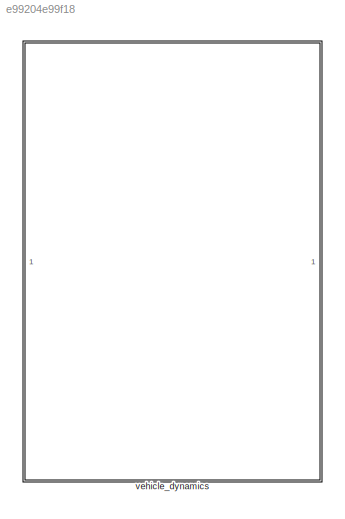
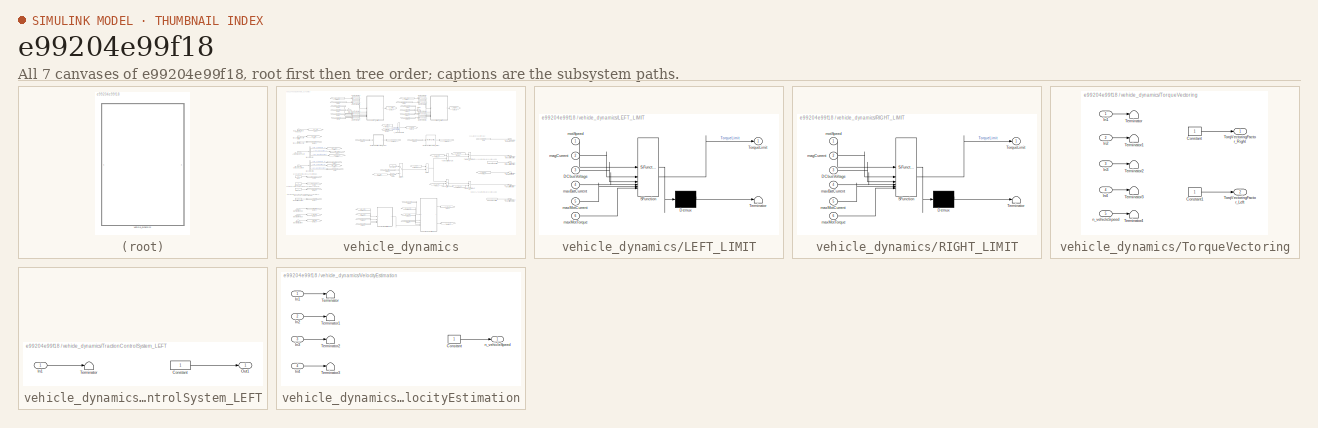
[diagram: thumbnail index - all 7 canvases of the model, root first then tree order]
MODEL slx_e99204e99f18
KIND library
CONFIG AbsTol = auto
CONFIG EnableMultiTasking = off
CONFIG FixedStep = auto
CONFIG MaxStep = auto
CONFIG MinStep = auto
CONFIG RelTol = 1e-3
CONFIG SampleTimeConstraint = Unconstrained
CONFIG SolverName = VariableStepAuto
CONFIG StartTime = 0.0
CONFIG StopTime = 10.0
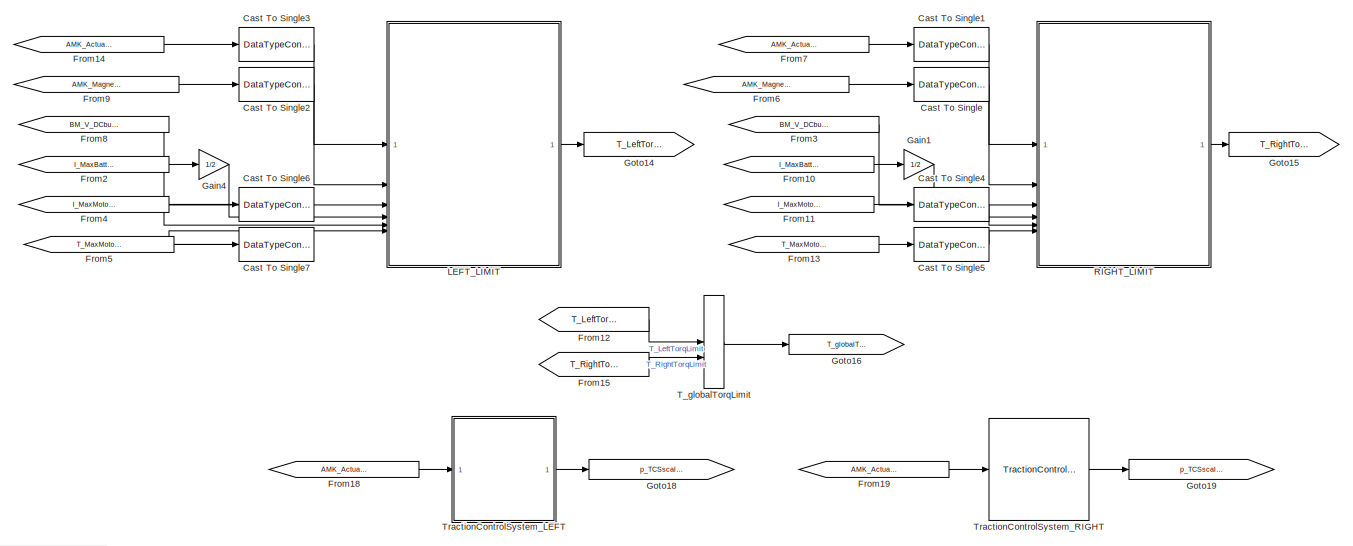
[diagram: vehicle_dynamics - part 1/4, top center region]
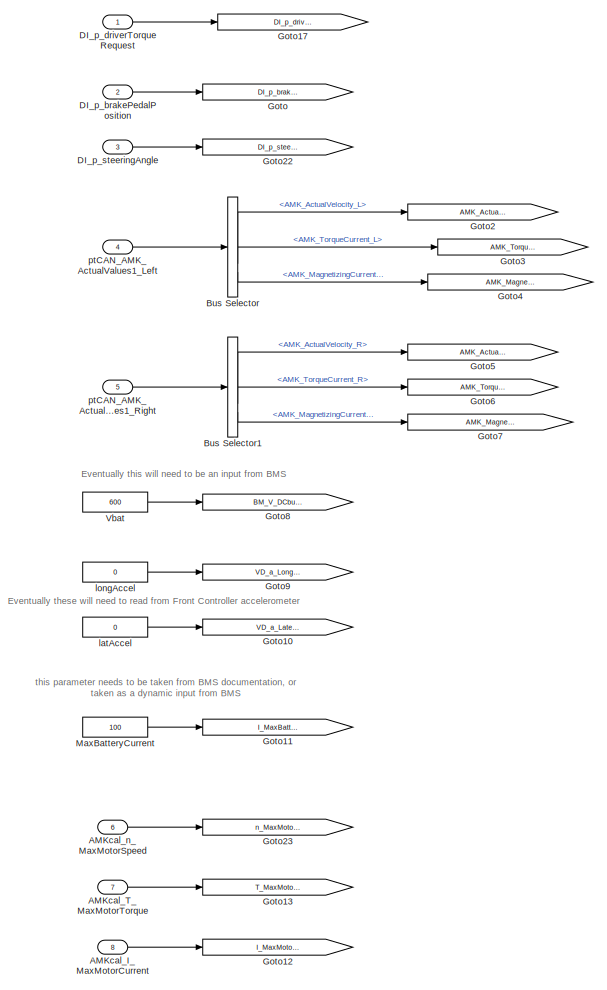
[diagram: vehicle_dynamics - part 2/4, middle left region]
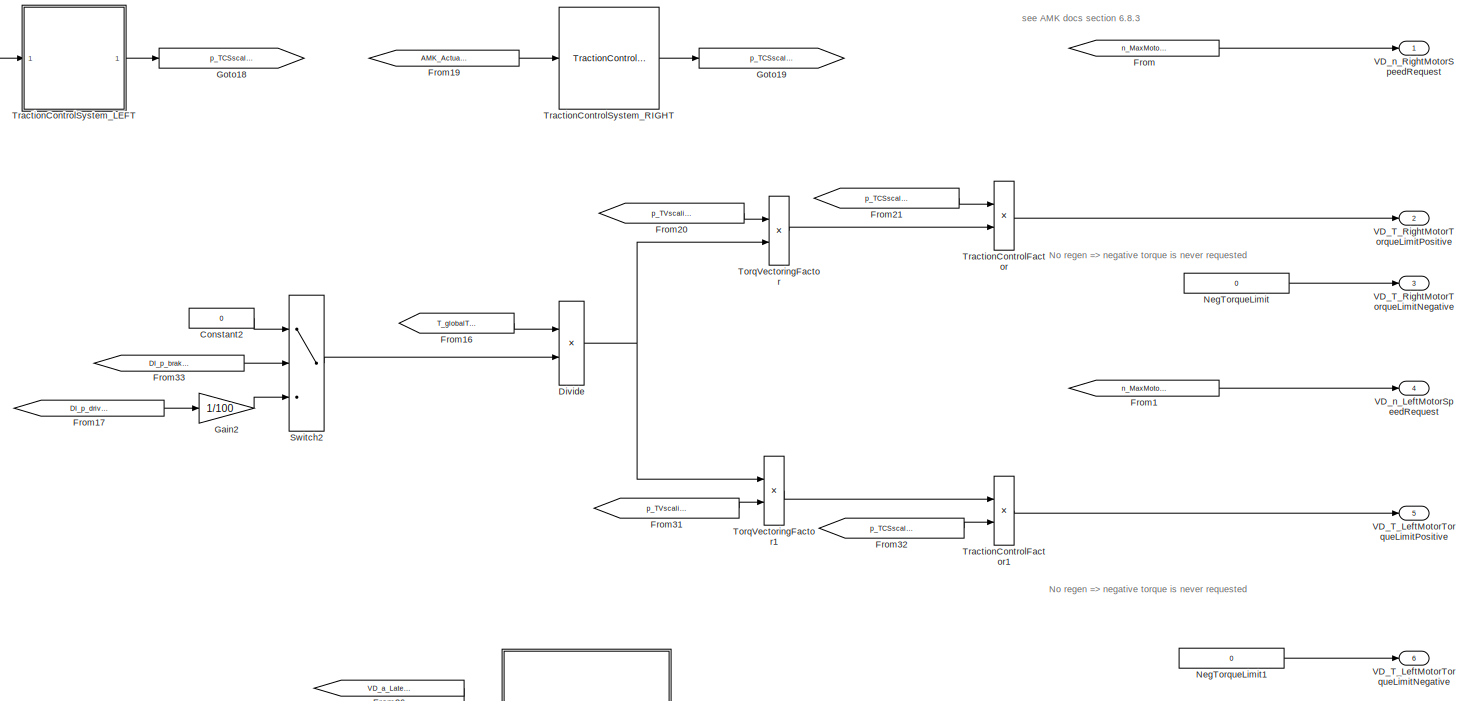
[diagram: vehicle_dynamics - part 3/4, middle right region]
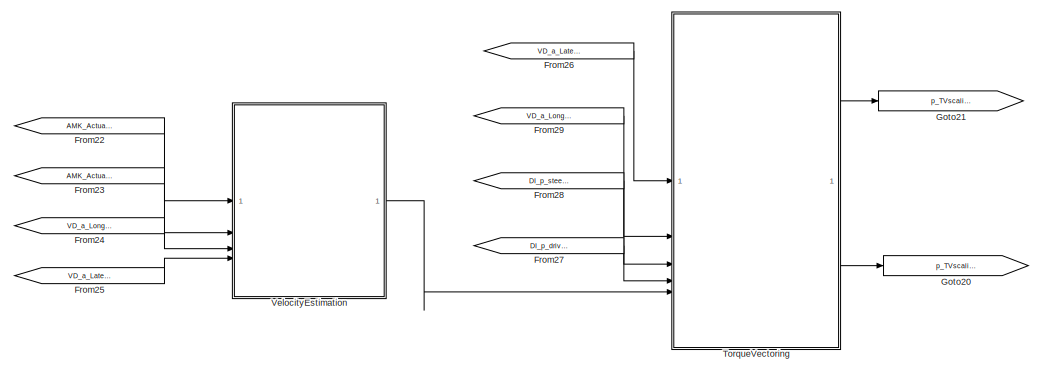
[diagram: vehicle_dynamics - part 4/4, bottom center region]
BLOCK [SubSystem] vehicle_dynamics
BLOCK [Inport] vehicle_dynamics/AMKcal_I_MaxMotorCurrent
  Port = 8
BLOCK [Inport] vehicle_dynamics/AMKcal_T_MaxMotorTorque
  Port = 7
BLOCK [Inport] vehicle_dynamics/AMKcal_n_MaxMotorSpeed
  Port = 6
BLOCK [BusSelector] vehicle_dynamics/Bus Selector
  OutputSignals = AMK_ActualVelocity_L,AMK_TorqueCurrent_L,AMK_MagnetizingCurrent_L
BLOCK [BusSelector] vehicle_dynamics/Bus Selector1
  OutputSignals = AMK_ActualVelocity_R,AMK_TorqueCurrent_R,AMK_MagnetizingCurrent_R
BLOCK [DataTypeConversion] vehicle_dynamics/Cast To Single
  OutDataTypeStr = single
  RndMeth = Floor
  SaturateOnIntegerOverflow = off
BLOCK [DataTypeConversion] vehicle_dynamics/Cast To Single1
  OutDataTypeStr = single
  RndMeth = Floor
  SaturateOnIntegerOverflow = off
BLOCK [DataTypeConversion] vehicle_dynamics/Cast To Single2
  OutDataTypeStr = single
  RndMeth = Floor
  SaturateOnIntegerOverflow = off
BLOCK [DataTypeConversion] vehicle_dynamics/Cast To Single3
  OutDataTypeStr = single
  RndMeth = Floor
  SaturateOnIntegerOverflow = off
BLOCK [DataTypeConversion] vehicle_dynamics/Cast To Single4
  OutDataTypeStr = single
  RndMeth = Floor
  SaturateOnIntegerOverflow = off
BLOCK [DataTypeConversion] vehicle_dynamics/Cast To Single5
  OutDataTypeStr = single
  RndMeth = Floor
  SaturateOnIntegerOverflow = off
BLOCK [DataTypeConversion] vehicle_dynamics/Cast To Single6
  OutDataTypeStr = single
  RndMeth = Floor
  SaturateOnIntegerOverflow = off
BLOCK [DataTypeConversion] vehicle_dynamics/Cast To Single7
  OutDataTypeStr = single
  RndMeth = Floor
  SaturateOnIntegerOverflow = off
BLOCK [Constant] vehicle_dynamics/Constant2
  OutDataTypeStr = single
  Value = 0
BLOCK [Inport] vehicle_dynamics/DI_p_brakePedalPosition
  Port = 2
BLOCK [Inport] vehicle_dynamics/DI_p_driverTorqueRequest
BLOCK [Inport] vehicle_dynamics/DI_p_steeringAngle
  Port = 3
BLOCK [Product] vehicle_dynamics/Divide
  Inputs = **
BLOCK [From] vehicle_dynamics/From
  GotoTag = n_MaxMotorSpeed
BLOCK [From] vehicle_dynamics/From1
  GotoTag = n_MaxMotorSpeed
BLOCK [From] vehicle_dynamics/From10
  GotoTag = I_MaxBatteryCurrent
BLOCK [From] vehicle_dynamics/From11
  GotoTag = I_MaxMotorCurrent
BLOCK [From] vehicle_dynamics/From12
  GotoTag = T_LeftTorqLimit
BLOCK [From] vehicle_dynamics/From13
  GotoTag = T_MaxMotorTorque
BLOCK [From] vehicle_dynamics/From14
  GotoTag = AMK_ActualVelocity_Left
BLOCK [From] vehicle_dynamics/From15
  GotoTag = T_RightTorqLimit
BLOCK [From] vehicle_dynamics/From16
  GotoTag = T_globalTorqLimit
BLOCK [From] vehicle_dynamics/From17
  GotoTag = DI_p_driverTorqueRequest
BLOCK [From] vehicle_dynamics/From18
  GotoTag = AMK_ActualVelocity_Left
BLOCK [From] vehicle_dynamics/From19
  GotoTag = AMK_ActualVelocity_Right
BLOCK [From] vehicle_dynamics/From2
  GotoTag = I_MaxBatteryCurrent
BLOCK [From] vehicle_dynamics/From20
  GotoTag = p_TVscalingFactor_Right
BLOCK [From] vehicle_dynamics/From21
  GotoTag = p_TCSscalingFactor_Right
BLOCK [From] vehicle_dynamics/From22
  GotoTag = AMK_ActualVelocity_Left
BLOCK [From] vehicle_dynamics/From23
  GotoTag = AMK_ActualVelocity_Right
BLOCK [From] vehicle_dynamics/From24
  GotoTag = VD_a_LongitudinalAccel
BLOCK [From] vehicle_dynamics/From25
  GotoTag = VD_a_LateralAccel
BLOCK [From] vehicle_dynamics/From26
  GotoTag = VD_a_LateralAccel
BLOCK [From] vehicle_dynamics/From27
  GotoTag = DI_p_driverTorqueRequest
BLOCK [From] vehicle_dynamics/From28
  GotoTag = DI_p_steeringAngle
BLOCK [From] vehicle_dynamics/From29
  GotoTag = VD_a_LongitudinalAccel
BLOCK [From] vehicle_dynamics/From3
  GotoTag = BM_V_DCbusVoltage
BLOCK [From] vehicle_dynamics/From31
  GotoTag = p_TVscalingFactor_Left
BLOCK [From] vehicle_dynamics/From32
  GotoTag = p_TCSscalingFactor_Left
BLOCK [From] vehicle_dynamics/From33
  GotoTag = DI_p_brakePedalPosition
BLOCK [From] vehicle_dynamics/From4
  GotoTag = I_MaxMotorCurrent
BLOCK [From] vehicle_dynamics/From5
  GotoTag = T_MaxMotorTorque
BLOCK [From] vehicle_dynamics/From6
  GotoTag = AMK_MagnetizingCurrent_Right
BLOCK [From] vehicle_dynamics/From7
  GotoTag = AMK_ActualVelocity_Right
BLOCK [From] vehicle_dynamics/From8
  GotoTag = BM_V_DCbusVoltage
BLOCK [From] vehicle_dynamics/From9
  GotoTag = AMK_MagnetizingCurrent_Left
BLOCK [Gain] vehicle_dynamics/Gain1
  Gain = 1/2
BLOCK [Gain] vehicle_dynamics/Gain2
  Gain = 1/100
BLOCK [Gain] vehicle_dynamics/Gain4
  Gain = 1/2
BLOCK [Goto] vehicle_dynamics/Goto
  GotoTag = DI_p_brakePedalPosition
BLOCK [Goto] vehicle_dynamics/Goto10
  GotoTag = VD_a_LateralAccel
BLOCK [Goto] vehicle_dynamics/Goto11
  GotoTag = I_MaxBatteryCurrent
BLOCK [Goto] vehicle_dynamics/Goto12
  GotoTag = I_MaxMotorCurrent
BLOCK [Goto] vehicle_dynamics/Goto13
  GotoTag = T_MaxMotorTorque
BLOCK [Goto] vehicle_dynamics/Goto14
  GotoTag = T_LeftTorqLimit
BLOCK [Goto] vehicle_dynamics/Goto15
  GotoTag = T_RightTorqLimit
BLOCK [Goto] vehicle_dynamics/Goto16
  GotoTag = T_globalTorqLimit
BLOCK [Goto] vehicle_dynamics/Goto17
  GotoTag = DI_p_driverTorqueRequest
BLOCK [Goto] vehicle_dynamics/Goto18
  GotoTag = p_TCSscalingFactor_Left
BLOCK [Goto] vehicle_dynamics/Goto19
  GotoTag = p_TCSscalingFactor_Right
BLOCK [Goto] vehicle_dynamics/Goto2
  GotoTag = AMK_ActualVelocity_Left
BLOCK [Goto] vehicle_dynamics/Goto20
  GotoTag = p_TVscalingFactor_Left
BLOCK [Goto] vehicle_dynamics/Goto21
  GotoTag = p_TVscalingFactor_Right
BLOCK [Goto] vehicle_dynamics/Goto22
  GotoTag = DI_p_steeringAngle
BLOCK [Goto] vehicle_dynamics/Goto23
  GotoTag = n_MaxMotorSpeed
BLOCK [Goto] vehicle_dynamics/Goto3
  GotoTag = AMK_TorqueCurrent_Left
BLOCK [Goto] vehicle_dynamics/Goto4
  GotoTag = AMK_MagnetizingCurrent_Left
BLOCK [Goto] vehicle_dynamics/Goto5
  GotoTag = AMK_ActualVelocity_Right
BLOCK [Goto] vehicle_dynamics/Goto6
  GotoTag = AMK_TorqueCurrent_Right
BLOCK [Goto] vehicle_dynamics/Goto7
  GotoTag = AMK_MagnetizingCurrent_Right
BLOCK [Goto] vehicle_dynamics/Goto8
  GotoTag = BM_V_DCbusVoltage
BLOCK [Goto] vehicle_dynamics/Goto9
  GotoTag = VD_a_LongitudinalAccel
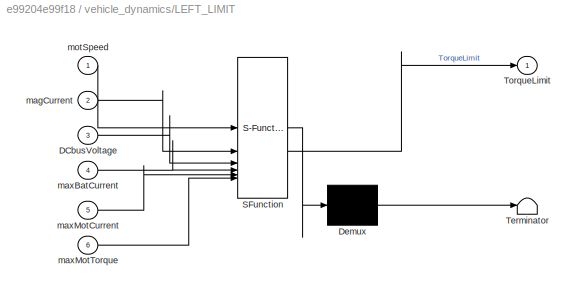
BLOCK [SubSystem] vehicle_dynamics/LEFT_LIMIT
  ErrorFcn = Stateflow.Translate.translate
  LibrarySourceBlock = simulink/User-Defined\nFunctions/MATLAB Function
  PermitHierarchicalResolution = ExplicitOnly
  SFBlockType = MATLAB Function
  TreatAsAtomicUnit = on
BLOCK [Demux] vehicle_dynamics/LEFT_LIMIT/ Demux 
  Outputs = 1
BLOCK [S-Function] vehicle_dynamics/LEFT_LIMIT/ SFunction 
  EnableBusSupport = off
  FunctionName = sf_sfun
  PortCounts = [6 2]
  SFcnIsStateOwnerBlock = off
  SFunctionDeploymentMode = off
  Tag = Stateflow S-Function 2
BLOCK [Terminator] vehicle_dynamics/LEFT_LIMIT/ Terminator 
BLOCK [Inport] vehicle_dynamics/LEFT_LIMIT/DCbusVoltage
  Port = 3
BLOCK [Outport] vehicle_dynamics/LEFT_LIMIT/TorqueLimit
BLOCK [Inport] vehicle_dynamics/LEFT_LIMIT/magCurrent
  Port = 2
BLOCK [Inport] vehicle_dynamics/LEFT_LIMIT/maxBatCurrent
  Port = 4
BLOCK [Inport] vehicle_dynamics/LEFT_LIMIT/maxMotCurrent
  Port = 5
BLOCK [Inport] vehicle_dynamics/LEFT_LIMIT/maxMotTorque
  Port = 6
BLOCK [Inport] vehicle_dynamics/LEFT_LIMIT/motSpeed
BLOCK [Constant] vehicle_dynamics/MaxBatteryCurrent
  OutDataTypeStr = single
  Value = 100
BLOCK [Constant] vehicle_dynamics/NegTorqueLimit
  OutDataTypeStr = single
  Value = 0
BLOCK [Constant] vehicle_dynamics/NegTorqueLimit1
  OutDataTypeStr = single
  Value = 0
BLOCK [SubSystem] vehicle_dynamics/RIGHT_LIMIT
  ErrorFcn = Stateflow.Translate.translate
  LibrarySourceBlock = simulink/User-Defined\nFunctions/MATLAB Function
  PermitHierarchicalResolution = ExplicitOnly
  SFBlockType = MATLAB Function
  TreatAsAtomicUnit = on
BLOCK [Demux] vehicle_dynamics/RIGHT_LIMIT/ Demux 
  Outputs = 1
BLOCK [S-Function] vehicle_dynamics/RIGHT_LIMIT/ SFunction 
  EnableBusSupport = off
  FunctionName = sf_sfun
  PortCounts = [6 2]
  SFcnIsStateOwnerBlock = off
  SFunctionDeploymentMode = off
  Tag = Stateflow S-Function 1
BLOCK [Terminator] vehicle_dynamics/RIGHT_LIMIT/ Terminator 
BLOCK [Inport] vehicle_dynamics/RIGHT_LIMIT/DCbusVoltage
  Port = 3
BLOCK [Outport] vehicle_dynamics/RIGHT_LIMIT/TorqueLimit
BLOCK [Inport] vehicle_dynamics/RIGHT_LIMIT/magCurrent
  Port = 2
BLOCK [Inport] vehicle_dynamics/RIGHT_LIMIT/maxBatCurrent
  Port = 4
BLOCK [Inport] vehicle_dynamics/RIGHT_LIMIT/maxMotCurrent
  Port = 5
BLOCK [Inport] vehicle_dynamics/RIGHT_LIMIT/maxMotTorque
  Port = 6
BLOCK [Inport] vehicle_dynamics/RIGHT_LIMIT/motSpeed
BLOCK [Switch] vehicle_dynamics/Switch2
  Criteria = u2 > Threshold
  InputSameDT = off
  SaturateOnIntegerOverflow = off
BLOCK [MinMax] vehicle_dynamics/T_globalTorqLimit
  Inputs = 2
BLOCK [Product] vehicle_dynamics/TorqVectoringFactor
  Inputs = **
BLOCK [Product] vehicle_dynamics/TorqVectoringFactor1
  Inputs = **
  NameLocation = top
BLOCK [SubSystem] vehicle_dynamics/TorqueVectoring
BLOCK [Constant] vehicle_dynamics/TorqueVectoring/Constant
  OutDataTypeStr = single
BLOCK [Constant] vehicle_dynamics/TorqueVectoring/Constant1
  OutDataTypeStr = single
BLOCK [Inport] vehicle_dynamics/TorqueVectoring/In1
BLOCK [Inport] vehicle_dynamics/TorqueVectoring/In2
  Port = 2
BLOCK [Inport] vehicle_dynamics/TorqueVectoring/In3
  Port = 3
BLOCK [Inport] vehicle_dynamics/TorqueVectoring/In4
  Port = 4
BLOCK [Terminator] vehicle_dynamics/TorqueVectoring/Terminator
BLOCK [Terminator] vehicle_dynamics/TorqueVectoring/Terminator1
BLOCK [Terminator] vehicle_dynamics/TorqueVectoring/Terminator2
BLOCK [Terminator] vehicle_dynamics/TorqueVectoring/Terminator3
BLOCK [Terminator] vehicle_dynamics/TorqueVectoring/Terminator4
BLOCK [Outport] vehicle_dynamics/TorqueVectoring/TorqVectoringFactor_Left
  Port = 2
BLOCK [Outport] vehicle_dynamics/TorqueVectoring/TorqVectoringFactor_Right
BLOCK [Inport] vehicle_dynamics/TorqueVectoring/n_vehicleSpeed
  Port = 5
BLOCK [Product] vehicle_dynamics/TractionControlFactor
  Inputs = **
BLOCK [Product] vehicle_dynamics/TractionControlFactor1
  Inputs = **
  NameLocation = top
BLOCK [SubSystem] vehicle_dynamics/TractionControlSystem_LEFT
BLOCK [Constant] vehicle_dynamics/TractionControlSystem_LEFT/Constant
  OutDataTypeStr = single
BLOCK [Inport] vehicle_dynamics/TractionControlSystem_LEFT/In1
BLOCK [Outport] vehicle_dynamics/TractionControlSystem_LEFT/Out1
BLOCK [Terminator] vehicle_dynamics/TractionControlSystem_LEFT/Terminator
BLOCK [Reference] vehicle_dynamics/TractionControlSystem_RIGHT  REF=$bdroot/vehicle_dynamics/TractionControlSystem_LEFT
  SourceBlock = $bdroot/vehicle_dynamics/TractionControlSystem_LEFT
  SourceType = SubSystem
BLOCK [Outport] vehicle_dynamics/VD_T_LeftMotorTorqueLimitNegative
  Port = 6
BLOCK [Outport] vehicle_dynamics/VD_T_LeftMotorTorqueLimitPositive
  Port = 5
BLOCK [Outport] vehicle_dynamics/VD_T_RightMotorTorqueLimitNegative
  Port = 3
BLOCK [Outport] vehicle_dynamics/VD_T_RightMotorTorqueLimitPositive
  Port = 2
BLOCK [Outport] vehicle_dynamics/VD_n_LeftMotorSpeedRequest
  Port = 4
BLOCK [Outport] vehicle_dynamics/VD_n_RightMotorSpeedRequest
BLOCK [Constant] vehicle_dynamics/Vbat
  OutDataTypeStr = single
  Value = 600
BLOCK [SubSystem] vehicle_dynamics/VelocityEstimation
BLOCK [Constant] vehicle_dynamics/VelocityEstimation/Constant
  OutDataTypeStr = single
BLOCK [Inport] vehicle_dynamics/VelocityEstimation/In1
BLOCK [Inport] vehicle_dynamics/VelocityEstimation/In2
  Port = 2
BLOCK [Inport] vehicle_dynamics/VelocityEstimation/In3
  Port = 3
BLOCK [Inport] vehicle_dynamics/VelocityEstimation/In4
  Port = 4
BLOCK [Terminator] vehicle_dynamics/VelocityEstimation/Terminator
BLOCK [Terminator] vehicle_dynamics/VelocityEstimation/Terminator1
BLOCK [Terminator] vehicle_dynamics/VelocityEstimation/Terminator2
BLOCK [Terminator] vehicle_dynamics/VelocityEstimation/Terminator3
BLOCK [Outport] vehicle_dynamics/VelocityEstimation/n_vehicleSpeed
BLOCK [Constant] vehicle_dynamics/latAccel
  OutDataTypeStr = single
  Value = 0
BLOCK [Constant] vehicle_dynamics/longAccel
  OutDataTypeStr = single
  Value = 0
BLOCK [Inport] vehicle_dynamics/ptCAN_AMK_ActualValues1_Left
  Port = 4
BLOCK [Inport] vehicle_dynamics/ptCAN_AMK_ActualValues1_Right
  Port = 5
ANNOTATION vehicle_dynamics: Eventually these will need to read from Front Controller accelerometer
ANNOTATION vehicle_dynamics: Eventually this will need to be an input from BMS
ANNOTATION vehicle_dynamics: No regen => negative torque is never requested
ANNOTATION vehicle_dynamics: see AMK docs section 6.8.3
ANNOTATION vehicle_dynamics: this parameter needs to be taken from BMS documentation, or taken as a dynamic input from BMS
LINE vehicle_dynamics/AMKcal_I_MaxMotorCurrent:1 -> vehicle_dynamics/Goto12:1
LINE vehicle_dynamics/AMKcal_T_MaxMotorTorque:1 -> vehicle_dynamics/Goto13:1
LINE vehicle_dynamics/AMKcal_n_MaxMotorSpeed:1 -> vehicle_dynamics/Goto23:1
LINE vehicle_dynamics/Bus Selector1:1 -> vehicle_dynamics/Goto5:1
LINE vehicle_dynamics/Bus Selector1:2 -> vehicle_dynamics/Goto6:1
LINE vehicle_dynamics/Bus Selector1:3 -> vehicle_dynamics/Goto7:1
LINE vehicle_dynamics/Bus Selector:1 -> vehicle_dynamics/Goto2:1
LINE vehicle_dynamics/Bus Selector:2 -> vehicle_dynamics/Goto3:1
LINE vehicle_dynamics/Bus Selector:3 -> vehicle_dynamics/Goto4:1
LINE vehicle_dynamics/Cast To Single1:1 -> vehicle_dynamics/RIGHT_LIMIT:1
LINE vehicle_dynamics/Cast To Single2:1 -> vehicle_dynamics/LEFT_LIMIT:2
LINE vehicle_dynamics/Cast To Single3:1 -> vehicle_dynamics/LEFT_LIMIT:1
LINE vehicle_dynamics/Cast To Single4:1 -> vehicle_dynamics/RIGHT_LIMIT:5
LINE vehicle_dynamics/Cast To Single5:1 -> vehicle_dynamics/RIGHT_LIMIT:6
LINE vehicle_dynamics/Cast To Single6:1 -> vehicle_dynamics/LEFT_LIMIT:5
LINE vehicle_dynamics/Cast To Single7:1 -> vehicle_dynamics/LEFT_LIMIT:6
LINE vehicle_dynamics/Cast To Single:1 -> vehicle_dynamics/RIGHT_LIMIT:2
LINE vehicle_dynamics/Constant2:1 -> vehicle_dynamics/Switch2:1
LINE vehicle_dynamics/DI_p_brakePedalPosition:1 -> vehicle_dynamics/Goto:1
LINE vehicle_dynamics/DI_p_driverTorqueRequest:1 -> vehicle_dynamics/Goto17:1
LINE vehicle_dynamics/DI_p_steeringAngle:1 -> vehicle_dynamics/Goto22:1
NET vehicle_dynamics/Divide:1 -> vehicle_dynamics/TorqVectoringFactor1:1, vehicle_dynamics/TorqVectoringFactor:2
LINE vehicle_dynamics/From10:1 -> vehicle_dynamics/Gain1:1
LINE vehicle_dynamics/From11:1 -> vehicle_dynamics/Cast To Single4:1
LINE vehicle_dynamics/From12:1 -> vehicle_dynamics/T_globalTorqLimit:1
LINE vehicle_dynamics/From13:1 -> vehicle_dynamics/Cast To Single5:1
LINE vehicle_dynamics/From14:1 -> vehicle_dynamics/Cast To Single3:1
LINE vehicle_dynamics/From15:1 -> vehicle_dynamics/T_globalTorqLimit:2
LINE vehicle_dynamics/From16:1 -> vehicle_dynamics/Divide:1
LINE vehicle_dynamics/From17:1 -> vehicle_dynamics/Gain2:1
LINE vehicle_dynamics/From18:1 -> vehicle_dynamics/TractionControlSystem_LEFT:1
LINE vehicle_dynamics/From19:1 -> vehicle_dynamics/TractionControlSystem_RIGHT:1
LINE vehicle_dynamics/From1:1 -> vehicle_dynamics/VD_n_LeftMotorSpeedRequest:1
LINE vehicle_dynamics/From20:1 -> vehicle_dynamics/TorqVectoringFactor:1
LINE vehicle_dynamics/From21:1 -> vehicle_dynamics/TractionControlFactor:1
LINE vehicle_dynamics/From22:1 -> vehicle_dynamics/VelocityEstimation:1
LINE vehicle_dynamics/From23:1 -> vehicle_dynamics/VelocityEstimation:2
LINE vehicle_dynamics/From24:1 -> vehicle_dynamics/VelocityEstimation:3
LINE vehicle_dynamics/From25:1 -> vehicle_dynamics/VelocityEstimation:4
LINE vehicle_dynamics/From26:1 -> vehicle_dynamics/TorqueVectoring:1
LINE vehicle_dynamics/From27:1 -> vehicle_dynamics/TorqueVectoring:4
LINE vehicle_dynamics/From28:1 -> vehicle_dynamics/TorqueVectoring:3
LINE vehicle_dynamics/From29:1 -> vehicle_dynamics/TorqueVectoring:2
LINE vehicle_dynamics/From2:1 -> vehicle_dynamics/Gain4:1
LINE vehicle_dynamics/From31:1 -> vehicle_dynamics/TorqVectoringFactor1:2
LINE vehicle_dynamics/From32:1 -> vehicle_dynamics/TractionControlFactor1:2
LINE vehicle_dynamics/From33:1 -> vehicle_dynamics/Switch2:2
LINE vehicle_dynamics/From3:1 -> vehicle_dynamics/RIGHT_LIMIT:3
LINE vehicle_dynamics/From4:1 -> vehicle_dynamics/Cast To Single6:1
LINE vehicle_dynamics/From5:1 -> vehicle_dynamics/Cast To Single7:1
LINE vehicle_dynamics/From6:1 -> vehicle_dynamics/Cast To Single:1
LINE vehicle_dynamics/From7:1 -> vehicle_dynamics/Cast To Single1:1
LINE vehicle_dynamics/From8:1 -> vehicle_dynamics/LEFT_LIMIT:3
LINE vehicle_dynamics/From9:1 -> vehicle_dynamics/Cast To Single2:1
LINE vehicle_dynamics/From:1 -> vehicle_dynamics/VD_n_RightMotorSpeedRequest:1
LINE vehicle_dynamics/Gain1:1 -> vehicle_dynamics/RIGHT_LIMIT:4
LINE vehicle_dynamics/Gain2:1 -> vehicle_dynamics/Switch2:3
LINE vehicle_dynamics/Gain4:1 -> vehicle_dynamics/LEFT_LIMIT:4
LINE vehicle_dynamics/LEFT_LIMIT:1 -> vehicle_dynamics/Goto14:1
LINE vehicle_dynamics/MaxBatteryCurrent:1 -> vehicle_dynamics/Goto11:1
LINE vehicle_dynamics/NegTorqueLimit1:1 -> vehicle_dynamics/VD_T_LeftMotorTorqueLimitNegative:1
LINE vehicle_dynamics/NegTorqueLimit:1 -> vehicle_dynamics/VD_T_RightMotorTorqueLimitNegative:1
LINE vehicle_dynamics/RIGHT_LIMIT:1 -> vehicle_dynamics/Goto15:1
LINE vehicle_dynamics/Switch2:1 -> vehicle_dynamics/Divide:2
LINE vehicle_dynamics/T_globalTorqLimit:1 -> vehicle_dynamics/Goto16:1
LINE vehicle_dynamics/TorqVectoringFactor1:1 -> vehicle_dynamics/TractionControlFactor1:1
LINE vehicle_dynamics/TorqVectoringFactor:1 -> vehicle_dynamics/TractionControlFactor:2
LINE vehicle_dynamics/TorqueVectoring/Constant1:1 -> vehicle_dynamics/TorqueVectoring/TorqVectoringFactor_Left:1
LINE vehicle_dynamics/TorqueVectoring/Constant:1 -> vehicle_dynamics/TorqueVectoring/TorqVectoringFactor_Right:1
LINE vehicle_dynamics/TorqueVectoring/In1:1 -> vehicle_dynamics/TorqueVectoring/Terminator:1
LINE vehicle_dynamics/TorqueVectoring/In2:1 -> vehicle_dynamics/TorqueVectoring/Terminator1:1
LINE vehicle_dynamics/TorqueVectoring/In3:1 -> vehicle_dynamics/TorqueVectoring/Terminator2:1
LINE vehicle_dynamics/TorqueVectoring/In4:1 -> vehicle_dynamics/TorqueVectoring/Terminator3:1
LINE vehicle_dynamics/TorqueVectoring/n_vehicleSpeed:1 -> vehicle_dynamics/TorqueVectoring/Terminator4:1
LINE vehicle_dynamics/TorqueVectoring:1 -> vehicle_dynamics/Goto21:1
LINE vehicle_dynamics/TorqueVectoring:2 -> vehicle_dynamics/Goto20:1
LINE vehicle_dynamics/TractionControlFactor1:1 -> vehicle_dynamics/VD_T_LeftMotorTorqueLimitPositive:1
LINE vehicle_dynamics/TractionControlFactor:1 -> vehicle_dynamics/VD_T_RightMotorTorqueLimitPositive:1
LINE vehicle_dynamics/TractionControlSystem_LEFT/Constant:1 -> vehicle_dynamics/TractionControlSystem_LEFT/Out1:1
LINE vehicle_dynamics/TractionControlSystem_LEFT/In1:1 -> vehicle_dynamics/TractionControlSystem_LEFT/Terminator:1
LINE vehicle_dynamics/TractionControlSystem_LEFT:1 -> vehicle_dynamics/Goto18:1
LINE vehicle_dynamics/TractionControlSystem_RIGHT:1 -> vehicle_dynamics/Goto19:1
LINE vehicle_dynamics/Vbat:1 -> vehicle_dynamics/Goto8:1
LINE vehicle_dynamics/VelocityEstimation/Constant:1 -> vehicle_dynamics/VelocityEstimation/n_vehicleSpeed:1
LINE vehicle_dynamics/VelocityEstimation/In1:1 -> vehicle_dynamics/VelocityEstimation/Terminator:1
LINE vehicle_dynamics/VelocityEstimation/In2:1 -> vehicle_dynamics/VelocityEstimation/Terminator1:1
LINE vehicle_dynamics/VelocityEstimation/In3:1 -> vehicle_dynamics/VelocityEstimation/Terminator2:1
LINE vehicle_dynamics/VelocityEstimation/In4:1 -> vehicle_dynamics/VelocityEstimation/Terminator3:1
LINE vehicle_dynamics/VelocityEstimation:1 -> vehicle_dynamics/TorqueVectoring:5
LINE vehicle_dynamics/latAccel:1 -> vehicle_dynamics/Goto10:1
LINE vehicle_dynamics/longAccel:1 -> vehicle_dynamics/Goto9:1
LINE vehicle_dynamics/ptCAN_AMK_ActualValues1_Left:1 -> vehicle_dynamics/Bus Selector:1
LINE vehicle_dynamics/ptCAN_AMK_ActualValues1_Right:1 -> vehicle_dynamics/Bus Selector1:1
note: NET lines group one-source signal fan-out (src -> all destinations, sorted); 1:1 wires keep LINE
CHART vehicle_dynamics/RIGHT_LIMIT states=1 transitions=1
  STATE_LABEL 'eML_blk_kernel()'
  STATE_LABEL "SCRIPT:\nfunction TorqueLimit = MaxAvailableTorque(motSpeed, magCurrent, DCbusVoltage ,maxBatCurrent, maxMotCurrent, maxMotTorque)\n\n% this function computes the motor's available torque based solely on it's \n% available power (limited by max current and DC voltage). It does not account for\n% over-temperature torque limitation\n\nmagCurrent = max(magCurrent,0); % saturate below 0\nglobalCurrentLimit = ...<+537ch>"
CHART vehicle_dynamics/LEFT_LIMIT states=1 transitions=1
  STATE_LABEL 'eML_blk_kernel()'
  STATE_LABEL "SCRIPT:\nfunction TorqueLimit = MaxAvailableTorque(motSpeed, magCurrent, DCbusVoltage ,maxBatCurrent, maxMotCurrent, maxMotTorque)\n\n% this function computes the motor's available torque based solely on it's \n% available power (limited by max current and DC voltage). It does not account for\n% over-temperature torque limitation\n\nmagCurrent = max(magCurrent,0); % saturate below 0\nglobalCurrentLimit = ...<+537ch>"
CHART  states=0 transitions=0
CHART  states=0 transitions=0
